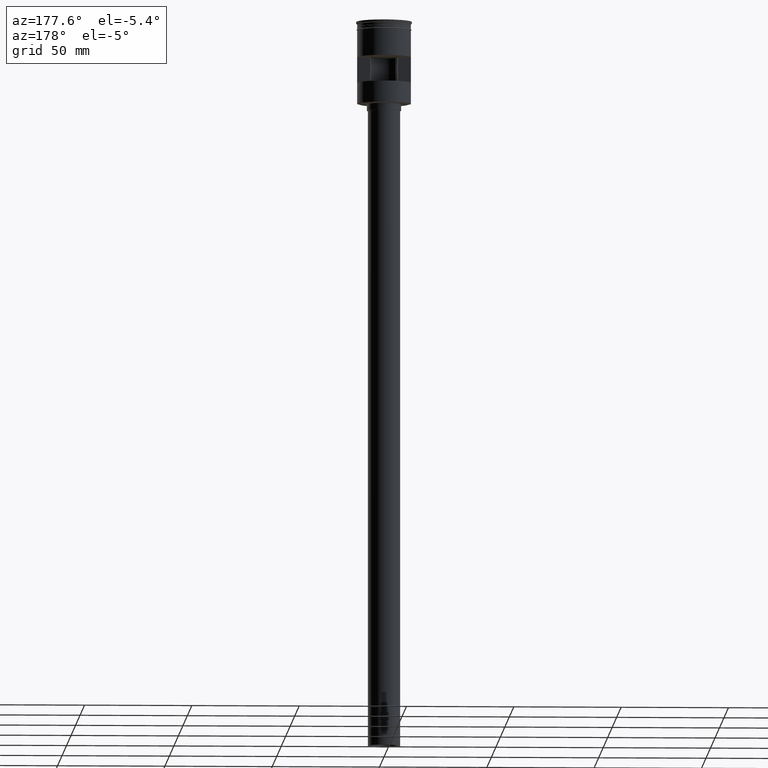
[diagram: clean part render]
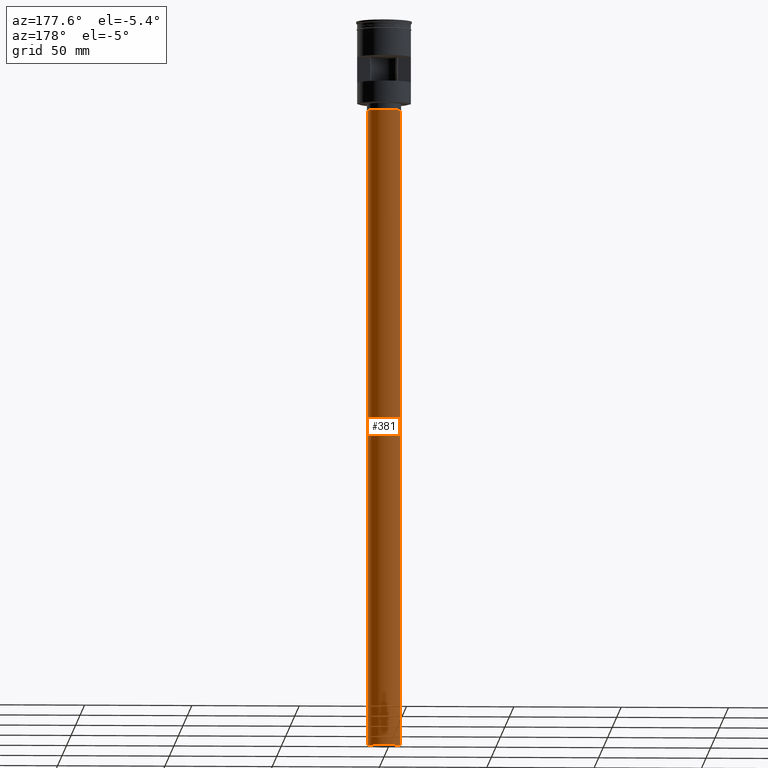
[diagram: same view with one face highlighted and labeled with its STEP entity id]
A machine part, auxiliary view. The second image highlights one B-rep face of the part: STEP entity #381.
In plain terms, the highlighted cylindrical surface (edge-blend (fillet) strip) has radius 7.5 mm, axis along (-0, -0, 1).
Its self-contained STEP definition (entity closure, byte-faithful):
#16 = VECTOR ( 'NONE', #88, 1000.000000000000000 ) ;
#33 = VERTEX_POINT ( 'NONE', #1271 ) ;
#81 = EDGE_LOOP ( 'NONE', ( #295, #1446, #1524, #1253 ) ) ;
#88 = DIRECTION ( 'NONE',  ( -0.000000000000000000, -0.000000000000000000, 1.000000000000000000 ) ) ;
#122 = DIRECTION ( 'NONE',  ( -1.000000000000000000, 0.000000000000000000, 0.000000000000000000 ) ) ;
#253 = VERTEX_POINT ( 'NONE', #494 ) ;
#254 = EDGE_CURVE ( 'NONE', #1046, #253, #1328, .T. ) ;
#295 = ORIENTED_EDGE ( 'NONE', *, *, #1235, .F. ) ;
#315 = AXIS2_PLACEMENT_3D ( 'NONE', #316, #1309, #590 ) ;
#316 = CARTESIAN_POINT ( 'NONE',  ( 0.000000000000000000, 0.000000000000000000, -338.4999999999999432 ) ) ;
#348 = LINE ( 'NONE', #643, #781 ) ;
#379 = CARTESIAN_POINT ( 'NONE',  ( 0.000000000000000000, 0.000000000000000000, -338.4999999999999432 ) ) ;
#381 = ADVANCED_FACE ( 'NONE', ( #1197 ), #1214, .T. ) ;
#395 = AXIS2_PLACEMENT_3D ( 'NONE', #1004, #608, #122 ) ;
#419 = CIRCLE ( 'NONE', #1566, 7.500000000000000000 ) ;
#494 = CARTESIAN_POINT ( 'NONE',  ( 7.500000000000000000, 0.000000000000000000, -41.50000000000000000 ) ) ;
#579 = EDGE_CURVE ( 'NONE', #33, #253, #348, .T. ) ;
#590 = DIRECTION ( 'NONE',  ( 1.000000000000000000, 0.000000000000000000, 0.000000000000000000 ) ) ;
#608 = DIRECTION ( 'NONE',  ( 0.000000000000000000, 0.000000000000000000, -1.000000000000000000 ) ) ;
#643 = CARTESIAN_POINT ( 'NONE',  ( 7.500000000000000000, 0.000000000000000000, -338.4999999999999432 ) ) ;
#781 = VECTOR ( 'NONE', #1378, 1000.000000000000000 ) ;
#848 = CARTESIAN_POINT ( 'NONE',  ( -7.500000000000000000, 9.184850993605147944E-16, -41.50000000000000000 ) ) ;
#1004 = CARTESIAN_POINT ( 'NONE',  ( 0.000000000000000000, 0.000000000000000000, -41.50000000000000000 ) ) ;
#1046 = VERTEX_POINT ( 'NONE', #848 ) ;
#1053 = EDGE_CURVE ( 'NONE', #1514, #1046, #1198, .T. ) ;
#1137 = DIRECTION ( 'NONE',  ( 0.000000000000000000, 0.000000000000000000, -1.000000000000000000 ) ) ;
#1197 = FACE_OUTER_BOUND ( 'NONE', #81, .T. ) ;
#1198 = LINE ( 'NONE', #1326, #16 ) ;
#1214 = CYLINDRICAL_SURFACE ( 'NONE', #315, 7.500000000000000000 ) ;
#1235 = EDGE_CURVE ( 'NONE', #1514, #33, #419, .T. ) ;
#1253 = ORIENTED_EDGE ( 'NONE', *, *, #579, .F. ) ;
#1271 = CARTESIAN_POINT ( 'NONE',  ( 7.500000000000000000, 0.000000000000000000, -338.4999999999999432 ) ) ;
#1309 = DIRECTION ( 'NONE',  ( -0.000000000000000000, -0.000000000000000000, 1.000000000000000000 ) ) ;
#1326 = CARTESIAN_POINT ( 'NONE',  ( -7.500000000000000000, 9.184850993605147944E-16, -338.4999999999999432 ) ) ;
#1328 = CIRCLE ( 'NONE', #395, 7.500000000000000000 ) ;
#1352 = DIRECTION ( 'NONE',  ( -1.000000000000000000, 0.000000000000000000, 0.000000000000000000 ) ) ;
#1369 = CARTESIAN_POINT ( 'NONE',  ( -7.500000000000000000, 9.184850993605147944E-16, -338.4999999999999432 ) ) ;
#1378 = DIRECTION ( 'NONE',  ( -0.000000000000000000, -0.000000000000000000, 1.000000000000000000 ) ) ;
#1446 = ORIENTED_EDGE ( 'NONE', *, *, #1053, .T. ) ;
#1514 = VERTEX_POINT ( 'NONE', #1369 ) ;
#1524 = ORIENTED_EDGE ( 'NONE', *, *, #254, .T. ) ;
#1566 = AXIS2_PLACEMENT_3D ( 'NONE', #379, #1137, #1352 ) ;